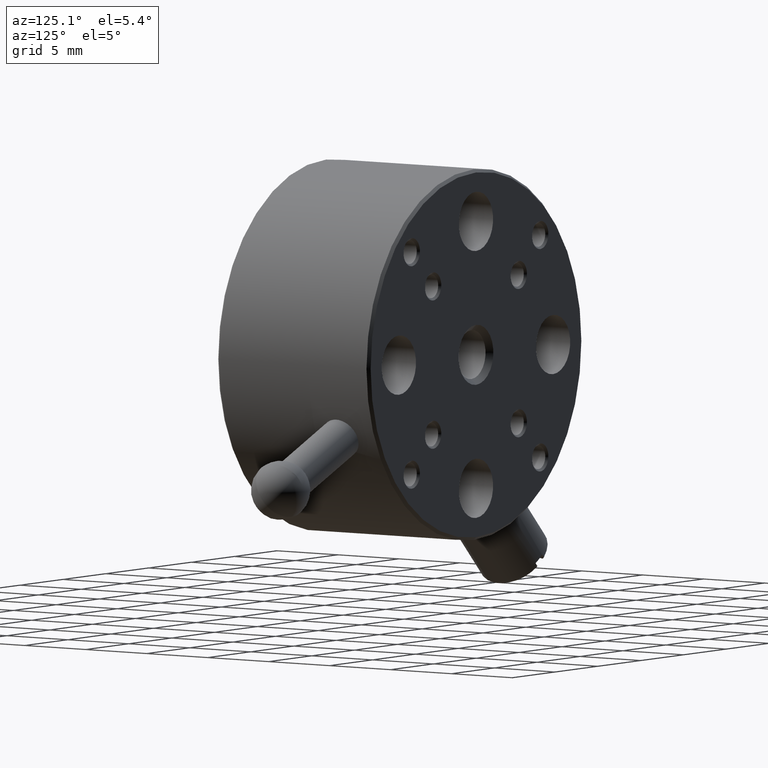
[diagram: clean part render]
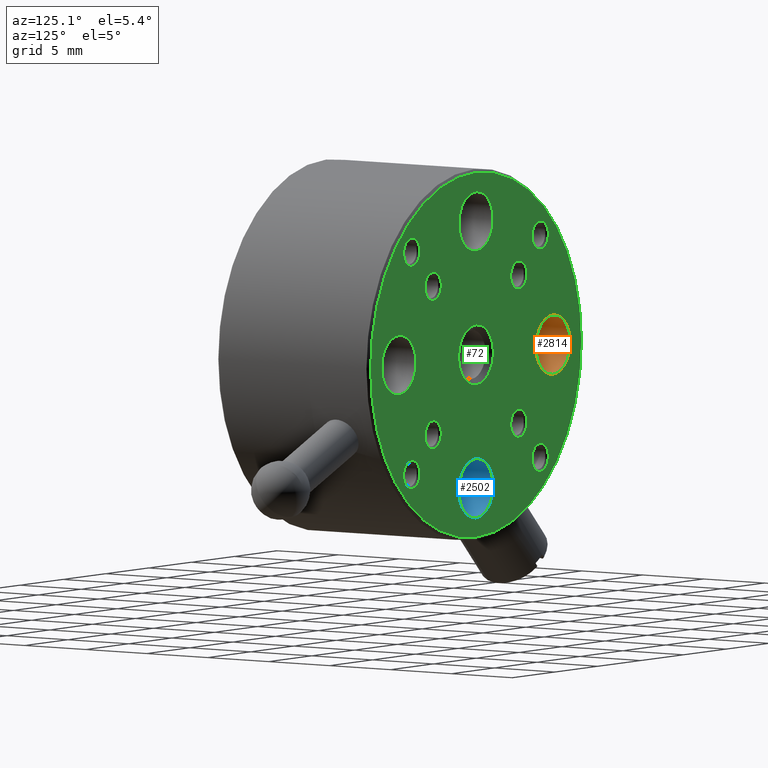
[diagram: same view with three faces highlighted in distinct colors, each labeled with its STEP entity id]
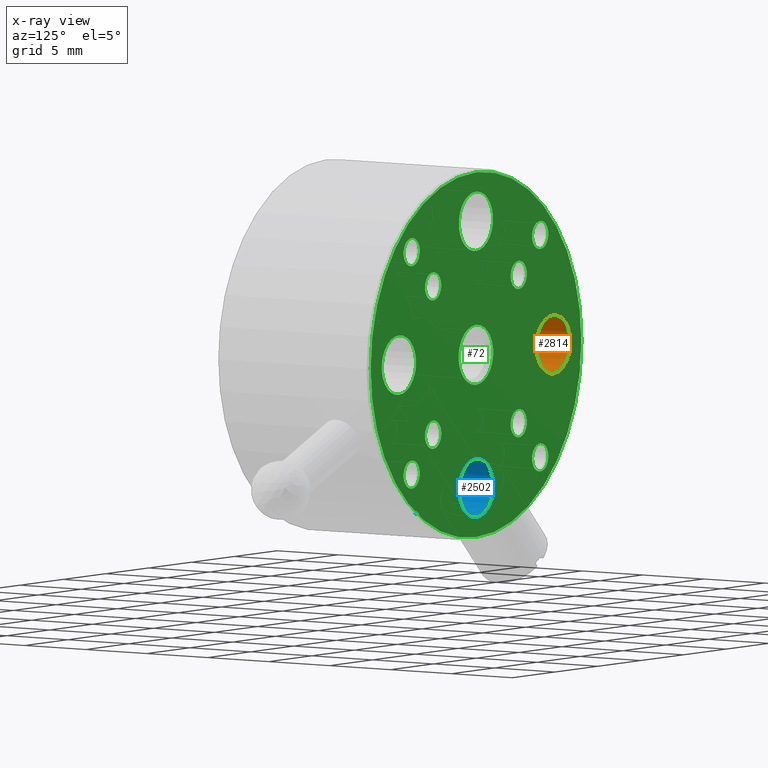
[diagram: x-ray of the same camera — body ghosted, the three highlighted faces saturated]
A machine part, auxiliary view with three faces highlighted in distinct colors.
The next image is the same camera in x-ray (body ghosted, the three faces saturated) — at least one of them is partly hidden behind the body in this view.
Their STEP definitions:

[orange] entity #2814 — the highlighted cylindrical surface (edge-blend (fillet) strip) has radius 2 mm, axis along (-0, 1, -0).
#65 = CARTESIAN_POINT ( 'NONE',  ( -9.000000000000005329, 12.42000000000000171, -3.142333204958820020E-14 ) ) ;
#124 = LINE ( 'NONE', #1553, #1680 ) ;
#142 = ORIENTED_EDGE ( 'NONE', *, *, #1702, .T. ) ;
#144 = DIRECTION ( 'NONE',  ( -0.000000000000000000, 1.000000000000000000, -0.000000000000000000 ) ) ;
#220 = ORIENTED_EDGE ( 'NONE', *, *, #872, .T. ) ;
#282 = AXIS2_PLACEMENT_3D ( 'NONE', #65, #371, #1803 ) ;
#315 = DIRECTION ( 'NONE',  ( 0.000000000000000000, 0.000000000000000000, 1.000000000000000000 ) ) ;
#365 = CARTESIAN_POINT ( 'NONE',  ( -9.000000000000005329, 12.42000000000000348, 1.999999999999956701 ) ) ;
#371 = DIRECTION ( 'NONE',  ( -0.000000000000000000, 1.000000000000000000, -0.000000000000000000 ) ) ;
#564 = ORIENTED_EDGE ( 'NONE', *, *, #732, .F. ) ;
#589 = CIRCLE ( 'NONE', #2301, 1.999999999999992673 ) ;
#702 = EDGE_CURVE ( 'NONE', #3131, #2065, #1783, .T. ) ;
#732 = EDGE_CURVE ( 'NONE', #2674, #2065, #124, .T. ) ;
#780 = VECTOR ( 'NONE', #845, 1000.000000000000000 ) ;
#840 = EDGE_LOOP ( 'NONE', ( #220, #142, #1919, #564 ) ) ;
#845 = DIRECTION ( 'NONE',  ( -0.000000000000000000, 1.000000000000000000, -0.000000000000000000 ) ) ;
#872 = EDGE_CURVE ( 'NONE', #2674, #2477, #589, .T. ) ;
#932 = DIRECTION ( 'NONE',  ( 0.000000000000000000, 0.000000000000000000, -1.000000000000000000 ) ) ;
#993 = AXIS2_PLACEMENT_3D ( 'NONE', #1104, #2326, #315 ) ;
#1104 = CARTESIAN_POINT ( 'NONE',  ( -9.000000000000005329, 12.42000000000000348, -3.142333204958820020E-14 ) ) ;
#1134 = CARTESIAN_POINT ( 'NONE',  ( -9.000000000000005329, 12.42000000000000171, -2.000000000000023981 ) ) ;
#1236 = CARTESIAN_POINT ( 'NONE',  ( -9.000000000000005329, 12.42000000000000348, -2.000000000000019096 ) ) ;
#1553 = CARTESIAN_POINT ( 'NONE',  ( -9.000000000000005329, 12.42000000000000171, 1.999999999999961364 ) ) ;
#1674 = DIRECTION ( 'NONE',  ( 0.000000000000000000, -1.000000000000000000, 0.000000000000000000 ) ) ;
#1680 = VECTOR ( 'NONE', #144, 1000.000000000000000 ) ;
#1702 = EDGE_CURVE ( 'NONE', #2477, #3131, #3046, .T. ) ;
#1783 = CIRCLE ( 'NONE', #993, 1.999999999999988010 ) ;
#1803 = DIRECTION ( 'NONE',  ( 0.000000000000000000, 0.000000000000000000, 1.000000000000000000 ) ) ;
#1919 = ORIENTED_EDGE ( 'NONE', *, *, #702, .T. ) ;
#2065 = VERTEX_POINT ( 'NONE', #365 ) ;
#2301 = AXIS2_PLACEMENT_3D ( 'NONE', #2392, #1674, #932 ) ;
#2326 = DIRECTION ( 'NONE',  ( -0.000000000000000000, 1.000000000000000000, -0.000000000000000000 ) ) ;
#2392 = CARTESIAN_POINT ( 'NONE',  ( -9.000000000000005329, 7.420000000000002593, -3.142333204958820020E-14 ) ) ;
#2454 = CARTESIAN_POINT ( 'NONE',  ( -9.000000000000005329, 7.420000000000002593, 1.999999999999961364 ) ) ;
#2477 = VERTEX_POINT ( 'NONE', #3035 ) ;
#2674 = VERTEX_POINT ( 'NONE', #2454 ) ;
#2814 = ADVANCED_FACE ( 'NONE', ( #3001 ), #3047, .F. ) ;
#3001 = FACE_OUTER_BOUND ( 'NONE', #840, .T. ) ;
#3035 = CARTESIAN_POINT ( 'NONE',  ( -9.000000000000005329, 7.420000000000002593, -2.000000000000023981 ) ) ;
#3046 = LINE ( 'NONE', #1134, #780 ) ;
#3047 = CYLINDRICAL_SURFACE ( 'NONE', #282, 1.999999999999992673 ) ;
#3131 = VERTEX_POINT ( 'NONE', #1236 ) ;

[blue] entity #2502 — the highlighted cylindrical surface (edge-blend (fillet) strip) has radius 2 mm, axis along (-0, 1, -0).
#109 = ORIENTED_EDGE ( 'NONE', *, *, #2715, .F. ) ;
#163 = CARTESIAN_POINT ( 'NONE',  ( 2.449293598294697540E-16, 12.42000000000000171, -10.99999999999999822 ) ) ;
#299 = DIRECTION ( 'NONE',  ( 0.000000000000000000, 0.000000000000000000, -1.000000000000000000 ) ) ;
#477 = VERTEX_POINT ( 'NONE', #2627 ) ;
#584 = AXIS2_PLACEMENT_3D ( 'NONE', #2807, #1351, #3055 ) ;
#707 = DIRECTION ( 'NONE',  ( 0.000000000000000000, 0.000000000000000000, 1.000000000000000000 ) ) ;
#726 = ORIENTED_EDGE ( 'NONE', *, *, #2267, .T. ) ;
#833 = FACE_OUTER_BOUND ( 'NONE', #1809, .T. ) ;
#1225 = CARTESIAN_POINT ( 'NONE',  ( -9.680597290791523246E-71, 7.420000000000002593, -9.000000000000005329 ) ) ;
#1322 = AXIS2_PLACEMENT_3D ( 'NONE', #1499, #2505, #707 ) ;
#1351 = DIRECTION ( 'NONE',  ( -0.000000000000000000, 1.000000000000000000, -0.000000000000000000 ) ) ;
#1375 = VECTOR ( 'NONE', #1513, 1000.000000000000000 ) ;
#1419 = CARTESIAN_POINT ( 'NONE',  ( 2.449293598294693102E-16, 12.42000000000000348, -10.99999999999999289 ) ) ;
#1438 = AXIS2_PLACEMENT_3D ( 'NONE', #1225, #2250, #299 ) ;
#1480 = CARTESIAN_POINT ( 'NONE',  ( -9.680597290791523246E-71, 7.420000000000002593, -7.000000000000011546 ) ) ;
#1499 = CARTESIAN_POINT ( 'NONE',  ( -9.680597290791523246E-71, 12.42000000000000348, -9.000000000000005329 ) ) ;
#1513 = DIRECTION ( 'NONE',  ( -0.000000000000000000, 1.000000000000000000, -0.000000000000000000 ) ) ;
#1809 = EDGE_LOOP ( 'NONE', ( #726, #1932, #2033, #109 ) ) ;
#1833 = CYLINDRICAL_SURFACE ( 'NONE', #584, 1.999999999999993117 ) ;
#1834 = CIRCLE ( 'NONE', #1322, 1.999999999999988010 ) ;
#1932 = ORIENTED_EDGE ( 'NONE', *, *, #2996, .T. ) ;
#2033 = ORIENTED_EDGE ( 'NONE', *, *, #2689, .T. ) ;
#2129 = DIRECTION ( 'NONE',  ( -0.000000000000000000, 1.000000000000000000, -0.000000000000000000 ) ) ;
#2187 = VERTEX_POINT ( 'NONE', #1419 ) ;
#2250 = DIRECTION ( 'NONE',  ( 0.000000000000000000, -1.000000000000000000, 0.000000000000000000 ) ) ;
#2267 = EDGE_CURVE ( 'NONE', #2636, #2776, #3156, .T. ) ;
#2367 = LINE ( 'NONE', #163, #2603 ) ;
#2502 = ADVANCED_FACE ( 'NONE', ( #833 ), #1833, .F. ) ;
#2505 = DIRECTION ( 'NONE',  ( -0.000000000000000000, 1.000000000000000000, -0.000000000000000000 ) ) ;
#2518 = CARTESIAN_POINT ( 'NONE',  ( 2.449293598294697047E-16, 7.420000000000002593, -10.99999999999999822 ) ) ;
#2603 = VECTOR ( 'NONE', #2129, 1000.000000000000000 ) ;
#2627 = CARTESIAN_POINT ( 'NONE',  ( -9.680597290791523246E-71, 12.42000000000000348, -7.000000000000016875 ) ) ;
#2636 = VERTEX_POINT ( 'NONE', #1480 ) ;
#2689 = EDGE_CURVE ( 'NONE', #2187, #477, #1834, .T. ) ;
#2715 = EDGE_CURVE ( 'NONE', #2636, #477, #2914, .T. ) ;
#2776 = VERTEX_POINT ( 'NONE', #2518 ) ;
#2807 = CARTESIAN_POINT ( 'NONE',  ( -9.680597290791523246E-71, 12.42000000000000171, -9.000000000000005329 ) ) ;
#2914 = LINE ( 'NONE', #3161, #1375 ) ;
#2996 = EDGE_CURVE ( 'NONE', #2776, #2187, #2367, .T. ) ;
#3055 = DIRECTION ( 'NONE',  ( 0.000000000000000000, 0.000000000000000000, 1.000000000000000000 ) ) ;
#3156 = CIRCLE ( 'NONE', #1438, 1.999999999999993117 ) ;
#3161 = CARTESIAN_POINT ( 'NONE',  ( -9.680597290791523246E-71, 12.42000000000000171, -7.000000000000011546 ) ) ;

[green] entity #72 — the highlighted planar face has unit normal (-0, 1, 0).
#72 = ADVANCED_FACE ( 'NONE', ( #1755, #2239, #1266, #2725, #2014, #507, #2982, #1998, #2485, #961, #779, #223, #1966, #976 ), #2925, .T. ) ;
#73 = VERTEX_POINT ( 'NONE', #2708 ) ;
#77 = CARTESIAN_POINT ( 'NONE',  ( 7.499999999999920952, 12.42000000000000171, 8.450000000069294970 ) ) ;
#101 = EDGE_CURVE ( 'NONE', #477, #2187, #478, .T. ) ;
#122 = CIRCLE ( 'NONE', #1360, 2.024999999999999023 ) ;
#125 = DIRECTION ( 'NONE',  ( 0.000000000000000000, -1.000000000000000000, 0.000000000000000000 ) ) ;
#132 = CARTESIAN_POINT ( 'NONE',  ( -5.000000000000000000, 12.42000000000000171, 4.049999999930786743 ) ) ;
#147 = AXIS2_PLACEMENT_3D ( 'NONE', #1564, #808, #2791 ) ;
#169 = CARTESIAN_POINT ( 'NONE',  ( -4.999999999999985789, 12.42000000000000171, -4.049999999930809835 ) ) ;
#175 = AXIS2_PLACEMENT_3D ( 'NONE', #2274, #2801, #1297 ) ;
#183 = AXIS2_PLACEMENT_3D ( 'NONE', #1769, #721, #2000 ) ;
#192 = VERTEX_POINT ( 'NONE', #609 ) ;
#197 = CARTESIAN_POINT ( 'NONE',  ( 5.000000000000000000, 12.42000000000000171, -5.000000000000001776 ) ) ;
#210 = DIRECTION ( 'NONE',  ( -0.000000000000000000, 1.000000000000000000, -0.000000000000000000 ) ) ;
#223 = FACE_BOUND ( 'NONE', #313, .T. ) ;
#243 = CARTESIAN_POINT ( 'NONE',  ( 12.49999999999999822, 12.42000000000000171, 8.401264770395875732E-71 ) ) ;
#254 = ORIENTED_EDGE ( 'NONE', *, *, #702, .F. ) ;
#258 = DIRECTION ( 'NONE',  ( -0.000000000000000000, 1.000000000000000000, -0.000000000000000000 ) ) ;
#262 = CARTESIAN_POINT ( 'NONE',  ( -9.680597290791523246E-71, 12.42000000000000348, 9.000000000000005329 ) ) ;
#271 = AXIS2_PLACEMENT_3D ( 'NONE', #1143, #125, #2633 ) ;
#276 = CARTESIAN_POINT ( 'NONE',  ( 1.846067390336988483E-70, 12.42000000000000171, 8.401264770395875732E-71 ) ) ;
#277 = DIRECTION ( 'NONE',  ( 0.000000000000000000, 0.000000000000000000, 1.000000000000000000 ) ) ;
#313 = EDGE_LOOP ( 'NONE', ( #1714, #1576 ) ) ;
#315 = DIRECTION ( 'NONE',  ( 0.000000000000000000, 0.000000000000000000, 1.000000000000000000 ) ) ;
#324 = DIRECTION ( 'NONE',  ( 0.000000000000000000, 0.000000000000000000, 1.000000000000000000 ) ) ;
#357 = ORIENTED_EDGE ( 'NONE', *, *, #2378, .F. ) ;
#365 = CARTESIAN_POINT ( 'NONE',  ( -9.000000000000005329, 12.42000000000000348, 1.999999999999956701 ) ) ;
#397 = CIRCLE ( 'NONE', #2455, 2.024999999999999023 ) ;
#406 = EDGE_CURVE ( 'NONE', #1503, #1715, #936, .T. ) ;
#410 = ORIENTED_EDGE ( 'NONE', *, *, #1585, .T. ) ;
#414 = DIRECTION ( 'NONE',  ( -0.000000000000000000, 1.000000000000000000, -0.000000000000000000 ) ) ;
#444 = ORIENTED_EDGE ( 'NONE', *, *, #2908, .T. ) ;
#449 = CIRCLE ( 'NONE', #2096, 1.999999999999988010 ) ;
#452 = CARTESIAN_POINT ( 'NONE',  ( 9.000000000000005329, 12.42000000000000348, 9.426999614876461321E-14 ) ) ;
#466 = CARTESIAN_POINT ( 'NONE',  ( 4.999999999999949374, 12.42000000000000171, 4.049999999930837369 ) ) ;
#477 = VERTEX_POINT ( 'NONE', #2627 ) ;
#478 = CIRCLE ( 'NONE', #3139, 1.999999999999988010 ) ;
#480 = AXIS2_PLACEMENT_3D ( 'NONE', #505, #1017, #2529 ) ;
#505 = CARTESIAN_POINT ( 'NONE',  ( -7.499999999999999112, 12.42000000000000171, 7.500000000000000000 ) ) ;
#507 = FACE_BOUND ( 'NONE', #630, .T. ) ;
#551 = CARTESIAN_POINT ( 'NONE',  ( 7.499999999999999112, 12.42000000000000171, -6.549999999930792072 ) ) ;
#561 = CARTESIAN_POINT ( 'NONE',  ( 4.999999999999949374, 12.42000000000000171, 5.000000000000052403 ) ) ;
#577 = AXIS2_PLACEMENT_3D ( 'NONE', #1058, #2826, #2991 ) ;
#583 = EDGE_LOOP ( 'NONE', ( #1007, #357 ) ) ;
#586 = AXIS2_PLACEMENT_3D ( 'NONE', #912, #2890, #1397 ) ;
#591 = AXIS2_PLACEMENT_3D ( 'NONE', #3034, #1832, #2806 ) ;
#592 = CARTESIAN_POINT ( 'NONE',  ( -7.499999999999973355, 12.42000000000000171, -7.500000000000024869 ) ) ;
#609 = CARTESIAN_POINT ( 'NONE',  ( -7.499999999999999112, 12.42000000000000171, 8.450000000069215034 ) ) ;
#620 = DIRECTION ( 'NONE',  ( 0.000000000000000000, 0.000000000000000000, 1.000000000000000000 ) ) ;
#630 = EDGE_LOOP ( 'NONE', ( #2053, #2008 ) ) ;
#634 = EDGE_CURVE ( 'NONE', #192, #1505, #735, .T. ) ;
#665 = ORIENTED_EDGE ( 'NONE', *, *, #1782, .T. ) ;
#669 = DIRECTION ( 'NONE',  ( 0.000000000000000000, -1.000000000000000000, 0.000000000000000000 ) ) ;
#690 = VERTEX_POINT ( 'NONE', #2041 ) ;
#699 = VERTEX_POINT ( 'NONE', #1126 ) ;
#701 = EDGE_CURVE ( 'NONE', #725, #2920, #1474, .T. ) ;
#702 = EDGE_CURVE ( 'NONE', #3131, #2065, #1783, .T. ) ;
#707 = DIRECTION ( 'NONE',  ( 0.000000000000000000, 0.000000000000000000, 1.000000000000000000 ) ) ;
#712 = ORIENTED_EDGE ( 'NONE', *, *, #2149, .T. ) ;
#714 = CARTESIAN_POINT ( 'NONE',  ( 7.499999999999920952, 12.42000000000000171, 6.549999999930865791 ) ) ;
#716 = DIRECTION ( 'NONE',  ( -0.000000000000000000, 1.000000000000000000, 0.000000000000000000 ) ) ;
#721 = DIRECTION ( 'NONE',  ( -0.000000000000000000, 1.000000000000000000, -0.000000000000000000 ) ) ;
#725 = VERTEX_POINT ( 'NONE', #2344 ) ;
#735 = CIRCLE ( 'NONE', #480, 0.9500000000692149227 ) ;
#740 = EDGE_LOOP ( 'NONE', ( #2325, #1712 ) ) ;
#772 = EDGE_LOOP ( 'NONE', ( #712, #1300 ) ) ;
#779 = FACE_BOUND ( 'NONE', #2829, .T. ) ;
#808 = DIRECTION ( 'NONE',  ( 0.000000000000000000, -1.000000000000000000, 0.000000000000000000 ) ) ;
#810 = VERTEX_POINT ( 'NONE', #169 ) ;
#825 = ORIENTED_EDGE ( 'NONE', *, *, #2245, .T. ) ;
#838 = DIRECTION ( 'NONE',  ( -0.000000000000000000, 1.000000000000000000, -0.000000000000000000 ) ) ;
#898 = CIRCLE ( 'NONE', #1329, 0.9500000000692079283 ) ;
#907 = EDGE_LOOP ( 'NONE', ( #2462, #665 ) ) ;
#909 = ORIENTED_EDGE ( 'NONE', *, *, #3049, .F. ) ;
#912 = CARTESIAN_POINT ( 'NONE',  ( 7.499999999999920952, 12.42000000000000171, 7.500000000000080824 ) ) ;
#936 = CIRCLE ( 'NONE', #271, 0.9500000000692149227 ) ;
#961 = FACE_BOUND ( 'NONE', #1699, .T. ) ;
#976 = FACE_BOUND ( 'NONE', #583, .T. ) ;
#987 = AXIS2_PLACEMENT_3D ( 'NONE', #1247, #2951, #2723 ) ;
#993 = AXIS2_PLACEMENT_3D ( 'NONE', #1104, #2326, #315 ) ;
#994 = EDGE_CURVE ( 'NONE', #2947, #1318, #2194, .T. ) ;
#1001 = CIRCLE ( 'NONE', #183, 1.999999999999988010 ) ;
#1004 = CIRCLE ( 'NONE', #3150, 0.9500000000692149227 ) ;
#1005 = CARTESIAN_POINT ( 'NONE',  ( 7.499999999999920952, 12.42000000000000171, 7.500000000000080824 ) ) ;
#1007 = ORIENTED_EDGE ( 'NONE', *, *, #2380, .F. ) ;
#1017 = DIRECTION ( 'NONE',  ( 0.000000000000000000, -1.000000000000000000, 0.000000000000000000 ) ) ;
#1025 = DIRECTION ( 'NONE',  ( 0.000000000000000000, -1.000000000000000000, 0.000000000000000000 ) ) ;
#1030 = ORIENTED_EDGE ( 'NONE', *, *, #634, .T. ) ;
#1058 = CARTESIAN_POINT ( 'NONE',  ( -5.000000000000000000, 12.42000000000000171, 5.000000000000001776 ) ) ;
#1074 = EDGE_LOOP ( 'NONE', ( #1030, #2232 ) ) ;
#1091 = DIRECTION ( 'NONE',  ( 0.000000000000000000, 0.000000000000000000, 1.000000000000000000 ) ) ;
#1092 = CARTESIAN_POINT ( 'NONE',  ( 7.499999999999999112, 12.42000000000000171, -8.450000000069207928 ) ) ;
#1104 = CARTESIAN_POINT ( 'NONE',  ( -9.000000000000005329, 12.42000000000000348, -3.142333204958820020E-14 ) ) ;
#1118 = AXIS2_PLACEMENT_3D ( 'NONE', #1659, #414, #2634 ) ;
#1123 = CARTESIAN_POINT ( 'NONE',  ( -7.499999999999973355, 12.42000000000000171, -6.549999999930808947 ) ) ;
#1126 = CARTESIAN_POINT ( 'NONE',  ( -7.499999999999973355, 12.42000000000000171, -8.450000000069239903 ) ) ;
#1131 = VERTEX_POINT ( 'NONE', #1788 ) ;
#1143 = CARTESIAN_POINT ( 'NONE',  ( 4.999999999999949374, 12.42000000000000171, 5.000000000000052403 ) ) ;
#1170 = EDGE_CURVE ( 'NONE', #1715, #1503, #2243, .T. ) ;
#1183 = EDGE_LOOP ( 'NONE', ( #1693, #254 ) ) ;
#1205 = CIRCLE ( 'NONE', #987, 0.9500000000692079283 ) ;
#1209 = EDGE_CURVE ( 'NONE', #810, #1815, #1988, .T. ) ;
#1226 = EDGE_CURVE ( 'NONE', #2618, #2858, #2756, .T. ) ;
#1230 = CIRCLE ( 'NONE', #1899, 0.9500000000692079283 ) ;
#1236 = CARTESIAN_POINT ( 'NONE',  ( -9.000000000000005329, 12.42000000000000348, -2.000000000000019096 ) ) ;
#1247 = CARTESIAN_POINT ( 'NONE',  ( 7.499999999999999112, 12.42000000000000171, -7.500000000000000000 ) ) ;
#1255 = DIRECTION ( 'NONE',  ( -0.000000000000000000, 1.000000000000000000, -0.000000000000000000 ) ) ;
#1266 = FACE_BOUND ( 'NONE', #2109, .T. ) ;
#1272 = DIRECTION ( 'NONE',  ( -0.000000000000000000, 1.000000000000000000, -0.000000000000000000 ) ) ;
#1296 = DIRECTION ( 'NONE',  ( 0.000000000000000000, -1.000000000000000000, 0.000000000000000000 ) ) ;
#1297 = DIRECTION ( 'NONE',  ( 0.000000000000000000, 0.000000000000000000, 1.000000000000000000 ) ) ;
#1300 = ORIENTED_EDGE ( 'NONE', *, *, #994, .T. ) ;
#1318 = VERTEX_POINT ( 'NONE', #2835 ) ;
#1322 = AXIS2_PLACEMENT_3D ( 'NONE', #1499, #2505, #707 ) ;
#1329 = AXIS2_PLACEMENT_3D ( 'NONE', #2799, #1296, #3044 ) ;
#1360 = AXIS2_PLACEMENT_3D ( 'NONE', #1870, #838, #1841 ) ;
#1366 = CARTESIAN_POINT ( 'NONE',  ( 9.000000000000005329, 12.42000000000000348, 9.426999614876461321E-14 ) ) ;
#1394 = EDGE_LOOP ( 'NONE', ( #410, #444 ) ) ;
#1397 = DIRECTION ( 'NONE',  ( 0.000000000000000000, 0.000000000000000000, 1.000000000000000000 ) ) ;
#1419 = CARTESIAN_POINT ( 'NONE',  ( 2.449293598294693102E-16, 12.42000000000000348, -10.99999999999999289 ) ) ;
#1429 = AXIS2_PLACEMENT_3D ( 'NONE', #592, #1593, #2563 ) ;
#1445 = DIRECTION ( 'NONE',  ( 0.000000000000000000, 0.000000000000000000, 1.000000000000000000 ) ) ;
#1467 = DIRECTION ( 'NONE',  ( 0.000000000000000000, 0.000000000000000000, 1.000000000000000000 ) ) ;
#1474 = CIRCLE ( 'NONE', #577, 0.9500000000692149227 ) ;
#1489 = AXIS2_PLACEMENT_3D ( 'NONE', #1005, #1025, #1502 ) ;
#1490 = ORIENTED_EDGE ( 'NONE', *, *, #2309, .F. ) ;
#1499 = CARTESIAN_POINT ( 'NONE',  ( -9.680597290791523246E-71, 12.42000000000000348, -9.000000000000005329 ) ) ;
#1502 = DIRECTION ( 'NONE',  ( 0.000000000000000000, 0.000000000000000000, 1.000000000000000000 ) ) ;
#1503 = VERTEX_POINT ( 'NONE', #466 ) ;
#1505 = VERTEX_POINT ( 'NONE', #3160 ) ;
#1548 = VERTEX_POINT ( 'NONE', #1768 ) ;
#1564 = CARTESIAN_POINT ( 'NONE',  ( -7.499999999999999112, 12.42000000000000171, 7.500000000000000000 ) ) ;
#1571 = VERTEX_POINT ( 'NONE', #1092 ) ;
#1576 = ORIENTED_EDGE ( 'NONE', *, *, #2689, .F. ) ;
#1583 = ORIENTED_EDGE ( 'NONE', *, *, #1860, .T. ) ;
#1585 = EDGE_CURVE ( 'NONE', #2235, #1131, #2541, .T. ) ;
#1590 = AXIS2_PLACEMENT_3D ( 'NONE', #561, #2534, #324 ) ;
#1593 = DIRECTION ( 'NONE',  ( 0.000000000000000000, -1.000000000000000000, 0.000000000000000000 ) ) ;
#1659 = CARTESIAN_POINT ( 'NONE',  ( 1.846067390336988483E-70, 12.42000000000000171, 8.401264770395875732E-71 ) ) ;
#1693 = ORIENTED_EDGE ( 'NONE', *, *, #2638, .F. ) ;
#1699 = EDGE_LOOP ( 'NONE', ( #2303, #1490 ) ) ;
#1712 = ORIENTED_EDGE ( 'NONE', *, *, #2868, .T. ) ;
#1714 = ORIENTED_EDGE ( 'NONE', *, *, #101, .F. ) ;
#1715 = VERTEX_POINT ( 'NONE', #2112 ) ;
#1755 = FACE_OUTER_BOUND ( 'NONE', #772, .T. ) ;
#1768 = CARTESIAN_POINT ( 'NONE',  ( 2.449293598294694088E-16, 12.42000000000000348, 7.000000000000016875 ) ) ;
#1769 = CARTESIAN_POINT ( 'NONE',  ( -9.000000000000005329, 12.42000000000000348, -3.142333204958820020E-14 ) ) ;
#1780 = DIRECTION ( 'NONE',  ( 0.000000000000000000, 0.000000000000000000, 1.000000000000000000 ) ) ;
#1782 = EDGE_CURVE ( 'NONE', #2920, #725, #2381, .T. ) ;
#1783 = CIRCLE ( 'NONE', #993, 1.999999999999988010 ) ;
#1788 = CARTESIAN_POINT ( 'NONE',  ( 5.000000000000000000, 12.42000000000000171, -5.950000000069216810 ) ) ;
#1797 = AXIS2_PLACEMENT_3D ( 'NONE', #262, #1255, #2231 ) ;
#1815 = VERTEX_POINT ( 'NONE', #2480 ) ;
#1824 = AXIS2_PLACEMENT_3D ( 'NONE', #2843, #2383, #2643 ) ;
#1832 = DIRECTION ( 'NONE',  ( 0.000000000000000000, -1.000000000000000000, 0.000000000000000000 ) ) ;
#1834 = CIRCLE ( 'NONE', #1322, 1.999999999999988010 ) ;
#1841 = DIRECTION ( 'NONE',  ( 0.000000000000000000, 0.000000000000000000, 1.000000000000000000 ) ) ;
#1860 = EDGE_CURVE ( 'NONE', #1898, #1571, #1205, .T. ) ;
#1863 = DIRECTION ( 'NONE',  ( 0.000000000000000000, -1.000000000000000000, 0.000000000000000000 ) ) ;
#1870 = CARTESIAN_POINT ( 'NONE',  ( -9.680597290791529681E-71, 12.42000000000000348, 1.680252954079175146E-70 ) ) ;
#1894 = AXIS2_PLACEMENT_3D ( 'NONE', #1366, #2336, #2583 ) ;
#1898 = VERTEX_POINT ( 'NONE', #551 ) ;
#1899 = AXIS2_PLACEMENT_3D ( 'NONE', #2961, #2683, #1467 ) ;
#1930 = CARTESIAN_POINT ( 'NONE',  ( 5.000000000000000000, 12.42000000000000171, -4.049999999930786743 ) ) ;
#1936 = AXIS2_PLACEMENT_3D ( 'NONE', #452, #210, #1445 ) ;
#1966 = FACE_BOUND ( 'NONE', #1183, .T. ) ;
#1967 = EDGE_CURVE ( 'NONE', #2271, #73, #122, .T. ) ;
#1970 = VERTEX_POINT ( 'NONE', #77 ) ;
#1974 = DIRECTION ( 'NONE',  ( -0.000000000000000000, 1.000000000000000000, -0.000000000000000000 ) ) ;
#1988 = CIRCLE ( 'NONE', #591, 0.9500000000692079283 ) ;
#1998 = FACE_BOUND ( 'NONE', #1394, .T. ) ;
#2000 = DIRECTION ( 'NONE',  ( 0.000000000000000000, 0.000000000000000000, 1.000000000000000000 ) ) ;
#2008 = ORIENTED_EDGE ( 'NONE', *, *, #2883, .T. ) ;
#2014 = FACE_BOUND ( 'NONE', #740, .T. ) ;
#2020 = CARTESIAN_POINT ( 'NONE',  ( -9.680597290791529681E-71, 12.42000000000000348, 2.024999999999999023 ) ) ;
#2036 = CIRCLE ( 'NONE', #1936, 1.999999999999988010 ) ;
#2041 = CARTESIAN_POINT ( 'NONE',  ( -9.680597290791523246E-71, 12.42000000000000348, 10.99999999999999289 ) ) ;
#2053 = ORIENTED_EDGE ( 'NONE', *, *, #2334, .T. ) ;
#2065 = VERTEX_POINT ( 'NONE', #365 ) ;
#2096 = AXIS2_PLACEMENT_3D ( 'NONE', #2266, #1974, #2475 ) ;
#2109 = EDGE_LOOP ( 'NONE', ( #2746, #2803 ) ) ;
#2112 = CARTESIAN_POINT ( 'NONE',  ( 4.999999999999949374, 12.42000000000000171, 5.950000000069267436 ) ) ;
#2114 = CARTESIAN_POINT ( 'NONE',  ( 1.518562030942717967E-15, 12.42000000000000171, 12.29999999999999893 ) ) ;
#2149 = EDGE_CURVE ( 'NONE', #1318, #2947, #2151, .T. ) ;
#2151 = CIRCLE ( 'NONE', #1118, 12.29999999999999893 ) ;
#2187 = VERTEX_POINT ( 'NONE', #1419 ) ;
#2191 = CIRCLE ( 'NONE', #1429, 0.9500000000692158109 ) ;
#2194 = CIRCLE ( 'NONE', #2555, 12.29999999999999893 ) ;
#2203 = ORIENTED_EDGE ( 'NONE', *, *, #1226, .F. ) ;
#2231 = DIRECTION ( 'NONE',  ( 0.000000000000000000, 0.000000000000000000, 1.000000000000000000 ) ) ;
#2232 = ORIENTED_EDGE ( 'NONE', *, *, #2465, .T. ) ;
#2235 = VERTEX_POINT ( 'NONE', #1930 ) ;
#2239 = FACE_BOUND ( 'NONE', #907, .T. ) ;
#2243 = CIRCLE ( 'NONE', #1590, 0.9500000000692149227 ) ;
#2245 = EDGE_CURVE ( 'NONE', #1571, #1898, #1230, .T. ) ;
#2254 = CIRCLE ( 'NONE', #1797, 1.999999999999988010 ) ;
#2266 = CARTESIAN_POINT ( 'NONE',  ( -9.680597290791523246E-71, 12.42000000000000348, 9.000000000000005329 ) ) ;
#2271 = VERTEX_POINT ( 'NONE', #2020 ) ;
#2274 = CARTESIAN_POINT ( 'NONE',  ( 5.000000000000000000, 12.42000000000000171, -5.000000000000001776 ) ) ;
#2303 = ORIENTED_EDGE ( 'NONE', *, *, #1967, .F. ) ;
#2309 = EDGE_CURVE ( 'NONE', #73, #2271, #397, .T. ) ;
#2325 = ORIENTED_EDGE ( 'NONE', *, *, #2923, .T. ) ;
#2326 = DIRECTION ( 'NONE',  ( -0.000000000000000000, 1.000000000000000000, -0.000000000000000000 ) ) ;
#2334 = EDGE_CURVE ( 'NONE', #1970, #3029, #2860, .T. ) ;
#2336 = DIRECTION ( 'NONE',  ( -0.000000000000000000, 1.000000000000000000, -0.000000000000000000 ) ) ;
#2344 = CARTESIAN_POINT ( 'NONE',  ( -5.000000000000000000, 12.42000000000000171, 5.950000000069216810 ) ) ;
#2364 = EDGE_LOOP ( 'NONE', ( #1583, #825 ) ) ;
#2378 = EDGE_CURVE ( 'NONE', #1548, #690, #449, .T. ) ;
#2380 = EDGE_CURVE ( 'NONE', #690, #1548, #2254, .T. ) ;
#2381 = CIRCLE ( 'NONE', #1824, 0.9500000000692149227 ) ;
#2383 = DIRECTION ( 'NONE',  ( 0.000000000000000000, -1.000000000000000000, 0.000000000000000000 ) ) ;
#2412 = VERTEX_POINT ( 'NONE', #1123 ) ;
#2449 = CIRCLE ( 'NONE', #586, 0.9500000000692140345 ) ;
#2455 = AXIS2_PLACEMENT_3D ( 'NONE', #2697, #2716, #277 ) ;
#2456 = EDGE_LOOP ( 'NONE', ( #2673, #2656 ) ) ;
#2462 = ORIENTED_EDGE ( 'NONE', *, *, #701, .T. ) ;
#2465 = EDGE_CURVE ( 'NONE', #1505, #192, #2815, .T. ) ;
#2475 = DIRECTION ( 'NONE',  ( 0.000000000000000000, 0.000000000000000000, 1.000000000000000000 ) ) ;
#2480 = CARTESIAN_POINT ( 'NONE',  ( -4.999999999999985789, 12.42000000000000171, -5.950000000069225692 ) ) ;
#2485 = FACE_BOUND ( 'NONE', #2364, .T. ) ;
#2487 = CARTESIAN_POINT ( 'NONE',  ( 9.000000000000005329, 12.42000000000000348, -1.999999999999893863 ) ) ;
#2505 = DIRECTION ( 'NONE',  ( -0.000000000000000000, 1.000000000000000000, -0.000000000000000000 ) ) ;
#2529 = DIRECTION ( 'NONE',  ( 0.000000000000000000, 0.000000000000000000, 1.000000000000000000 ) ) ;
#2534 = DIRECTION ( 'NONE',  ( 0.000000000000000000, -1.000000000000000000, 0.000000000000000000 ) ) ;
#2541 = CIRCLE ( 'NONE', #175, 0.9500000000692149227 ) ;
#2555 = AXIS2_PLACEMENT_3D ( 'NONE', #276, #1272, #2960 ) ;
#2563 = DIRECTION ( 'NONE',  ( 0.000000000000000000, 0.000000000000000000, 1.000000000000000000 ) ) ;
#2583 = DIRECTION ( 'NONE',  ( 0.000000000000000000, 0.000000000000000000, 1.000000000000000000 ) ) ;
#2618 = VERTEX_POINT ( 'NONE', #2487 ) ;
#2627 = CARTESIAN_POINT ( 'NONE',  ( -9.680597290791523246E-71, 12.42000000000000348, -7.000000000000016875 ) ) ;
#2633 = DIRECTION ( 'NONE',  ( 0.000000000000000000, 0.000000000000000000, 1.000000000000000000 ) ) ;
#2634 = DIRECTION ( 'NONE',  ( 0.000000000000000000, 0.000000000000000000, 1.000000000000000000 ) ) ;
#2638 = EDGE_CURVE ( 'NONE', #2065, #3131, #1001, .T. ) ;
#2643 = DIRECTION ( 'NONE',  ( 0.000000000000000000, 0.000000000000000000, 1.000000000000000000 ) ) ;
#2644 = CARTESIAN_POINT ( 'NONE',  ( -7.499999999999973355, 12.42000000000000171, -7.500000000000024869 ) ) ;
#2656 = ORIENTED_EDGE ( 'NONE', *, *, #406, .T. ) ;
#2673 = ORIENTED_EDGE ( 'NONE', *, *, #1170, .T. ) ;
#2683 = DIRECTION ( 'NONE',  ( 0.000000000000000000, -1.000000000000000000, 0.000000000000000000 ) ) ;
#2689 = EDGE_CURVE ( 'NONE', #2187, #477, #1834, .T. ) ;
#2697 = CARTESIAN_POINT ( 'NONE',  ( -9.680597290791529681E-71, 12.42000000000000348, 1.680252954079175146E-70 ) ) ;
#2708 = CARTESIAN_POINT ( 'NONE',  ( 2.479909768273388821E-16, 12.42000000000000348, -2.024999999999999023 ) ) ;
#2716 = DIRECTION ( 'NONE',  ( -0.000000000000000000, 1.000000000000000000, -0.000000000000000000 ) ) ;
#2723 = DIRECTION ( 'NONE',  ( 0.000000000000000000, 0.000000000000000000, 1.000000000000000000 ) ) ;
#2725 = FACE_BOUND ( 'NONE', #2456, .T. ) ;
#2746 = ORIENTED_EDGE ( 'NONE', *, *, #1209, .T. ) ;
#2756 = CIRCLE ( 'NONE', #1894, 1.999999999999988010 ) ;
#2791 = DIRECTION ( 'NONE',  ( 0.000000000000000000, 0.000000000000000000, 1.000000000000000000 ) ) ;
#2799 = CARTESIAN_POINT ( 'NONE',  ( -4.999999999999985789, 12.42000000000000171, -5.000000000000017764 ) ) ;
#2801 = DIRECTION ( 'NONE',  ( 0.000000000000000000, -1.000000000000000000, 0.000000000000000000 ) ) ;
#2802 = CARTESIAN_POINT ( 'NONE',  ( 9.000000000000005329, 12.42000000000000348, 2.000000000000082157 ) ) ;
#2803 = ORIENTED_EDGE ( 'NONE', *, *, #3171, .T. ) ;
#2806 = DIRECTION ( 'NONE',  ( 0.000000000000000000, 0.000000000000000000, 1.000000000000000000 ) ) ;
#2815 = CIRCLE ( 'NONE', #147, 0.9500000000692149227 ) ;
#2826 = DIRECTION ( 'NONE',  ( 0.000000000000000000, -1.000000000000000000, 0.000000000000000000 ) ) ;
#2829 = EDGE_LOOP ( 'NONE', ( #909, #2203 ) ) ;
#2834 = DIRECTION ( 'NONE',  ( 0.000000000000000000, 0.000000000000000000, 1.000000000000000000 ) ) ;
#2835 = CARTESIAN_POINT ( 'NONE',  ( 1.846067390336988483E-70, 12.42000000000000171, -12.29999999999999893 ) ) ;
#2843 = CARTESIAN_POINT ( 'NONE',  ( -5.000000000000000000, 12.42000000000000171, 5.000000000000001776 ) ) ;
#2844 = AXIS2_PLACEMENT_3D ( 'NONE', #243, #716, #1780 ) ;
#2853 = AXIS2_PLACEMENT_3D ( 'NONE', #2644, #669, #2834 ) ;
#2858 = VERTEX_POINT ( 'NONE', #2802 ) ;
#2860 = CIRCLE ( 'NONE', #1489, 0.9500000000692140345 ) ;
#2868 = EDGE_CURVE ( 'NONE', #699, #2412, #2191, .T. ) ;
#2883 = EDGE_CURVE ( 'NONE', #3029, #1970, #2449, .T. ) ;
#2890 = DIRECTION ( 'NONE',  ( 0.000000000000000000, -1.000000000000000000, 0.000000000000000000 ) ) ;
#2902 = CIRCLE ( 'NONE', #2853, 0.9500000000692158109 ) ;
#2908 = EDGE_CURVE ( 'NONE', #1131, #2235, #1004, .T. ) ;
#2920 = VERTEX_POINT ( 'NONE', #132 ) ;
#2923 = EDGE_CURVE ( 'NONE', #2412, #699, #2902, .T. ) ;
#2925 = PLANE ( 'NONE',  #2844 ) ;
#2937 = CARTESIAN_POINT ( 'NONE',  ( -9.680597290791523246E-71, 12.42000000000000348, -9.000000000000005329 ) ) ;
#2947 = VERTEX_POINT ( 'NONE', #2114 ) ;
#2951 = DIRECTION ( 'NONE',  ( 0.000000000000000000, -1.000000000000000000, 0.000000000000000000 ) ) ;
#2960 = DIRECTION ( 'NONE',  ( 0.000000000000000000, 0.000000000000000000, 1.000000000000000000 ) ) ;
#2961 = CARTESIAN_POINT ( 'NONE',  ( 7.499999999999999112, 12.42000000000000171, -7.500000000000000000 ) ) ;
#2982 = FACE_BOUND ( 'NONE', #1074, .T. ) ;
#2991 = DIRECTION ( 'NONE',  ( 0.000000000000000000, 0.000000000000000000, 1.000000000000000000 ) ) ;
#3029 = VERTEX_POINT ( 'NONE', #714 ) ;
#3034 = CARTESIAN_POINT ( 'NONE',  ( -4.999999999999985789, 12.42000000000000171, -5.000000000000017764 ) ) ;
#3044 = DIRECTION ( 'NONE',  ( 0.000000000000000000, 0.000000000000000000, 1.000000000000000000 ) ) ;
#3049 = EDGE_CURVE ( 'NONE', #2858, #2618, #2036, .T. ) ;
#3131 = VERTEX_POINT ( 'NONE', #1236 ) ;
#3139 = AXIS2_PLACEMENT_3D ( 'NONE', #2937, #258, #1091 ) ;
#3150 = AXIS2_PLACEMENT_3D ( 'NONE', #197, #1863, #620 ) ;
#3160 = CARTESIAN_POINT ( 'NONE',  ( -7.499999999999999112, 12.42000000000000171, 6.549999999930784966 ) ) ;
#3171 = EDGE_CURVE ( 'NONE', #1815, #810, #898, .T. ) ;